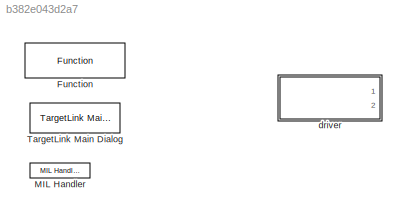
MODEL slx_b382e043d2a7
KIND model
CONFIG AbsTol = auto
CONFIG EnableMultiTasking = off
CONFIG FixedStep = auto
CONFIG InitFcn = if exist('tlds_init','file'), tlds_init(gcs); end
CONFIG MaxStep = auto
CONFIG MinStep = auto
CONFIG PostLoadFcn = if exist('tl_postloadfcn','file'), tl_postloadfcn(gcs,403); end
CONFIG PreLoadFcn = if exist('tl_preloadfcn','file'), tl_preloadfcn(gcs,403); end
CONFIG RelTol = 1e-3
CONFIG SampleTimeConstraint = Unconstrained
CONFIG Solver = FixedStepAuto
CONFIG SolverName = FixedStepAuto
CONFIG StartFcn = if exist('tlds_start','file'), tlds_start(gcs); end
CONFIG StartTime = 0.0
CONFIG StopFcn = if exist('tlds_stop','file'), tlds_stop(gcs); end
CONFIG StopTime = 10.0
BLOCK [Reference] Function  REF=tllib/Function
  Ports = []
  SourceBlock = tllib/Function
  SourceProductName = dSPACE TargetLink common blockset
  SourceType = TL_Function
BLOCK [Reference] MIL Handler  REF=tllib/MIL Handler
  Ports = []
  SourceBlock = tllib/MIL Handler
  SourceProductName = dSPACE TargetLink common blockset
  SourceType = TL_MilHandler
BLOCK [Reference] TargetLink Main Dialog  REF=tllib/TargetLink Main Dialog
  Ports = []
  SourceBlock = tllib/TargetLink Main Dialog
  SourceProductName = dSPACE TargetLink common blockset
  SourceType = TL_MainDialog
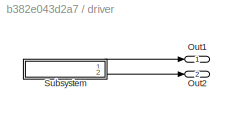
BLOCK [SubSystem] driver
  CopyFcn = if exist('tl_copyfcn','file'), tl_copyfcn(gcbh); end
  NameChangeFcn = if exist('tl_framenamechangefcn','file'), tl_framenamechangefcn(gcbh); end
  OpenFcn = if exist('open_tlsubsystem','file')\n   open_tlsubsystem(gcbh);\nelse\n   tlsubsystem = ...\n      find_system(gcb, ...\n      'LookUnderMasks','on', ...\n      'FollowLinks','on', ...\n      'Tag','MIL Subsystem');\n   open_system(tlsubsystem);\nend
  Ports = [0, 2]
  RequestExecContextInheritance = off
  Tag = TargetLink Simulation Frame
  Variant = off
BLOCK [Outport] driver/Out1
  IconDisplay = Port number
BLOCK [Outport] driver/Out2
  IconDisplay = Port number
  Port = 2
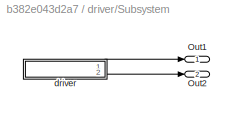
BLOCK [SubSystem] driver/Subsystem
  OpenFcn = warndlg(get_param(gcb,'MaskHelp'),'Serious Warning');
  Ports = [0, 2]
  RequestExecContextInheritance = off
  UserDataPersistent = on
  Variant = off
BLOCK [Outport] driver/Subsystem/Out1
  IconDisplay = Port number
BLOCK [Outport] driver/Subsystem/Out2
  IconDisplay = Port number
  Port = 2
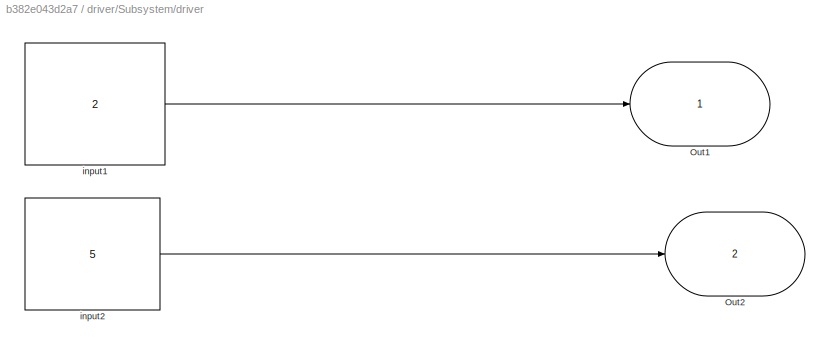
BLOCK [SubSystem] driver/Subsystem/driver
  CopyFcn = if exist('tl_copyfcn','file'), tl_copyfcn(gcbh); end
  Description = a
  DestroyFcn = if exist('update_tl_main_dlg','file'), update_tl_main_dlg('TL_subs_display'); end
  NameChangeFcn = if exist('tl_namechangefcn','file'), tl_namechangefcn(gcbh); end
  Ports = [0, 2]
  RequestExecContextInheritance = off
  Tag = MIL Subsystem
  Variant = off
BLOCK [Outport] driver/Subsystem/driver/Out1
  CopyFcn = if ~strcmp(get_param(gcbh, 'LinkStatus'), 'implicit') set_param(gcbh,'ReferenceBlock',''); end;\nif exist('tl_reset_reviewflag','file')==2\n    tl_reset_reviewflag(gcbh);\nend\nif exist('tl_check_ports','file')\n    tl_check_ports(gcbh);\nend
  DeleteFcn = if exist('delete_tlblock','file')==2,delete_tlblock(gcbh);end
  IconDisplay = Port number
  NameChangeFcn = if exist('rename_tlblock','file')==2,rename_tlblock(gcbh);end\nif exist('tl_check_ports','file'), tl_check_ports(gcbh); end
  OpenFcn = if exist('tl_open_blockdlg','file')==2,tl_open_blockdlg(gcbh);else,open_system(gcbh,'parameter');end
  PortDimensions = 1
BLOCK [Outport] driver/Subsystem/driver/Out2
  CopyFcn = if ~strcmp(get_param(gcbh, 'LinkStatus'), 'implicit') set_param(gcbh,'ReferenceBlock',''); end;\nif exist('tl_reset_reviewflag','file')==2\n    tl_reset_reviewflag(gcbh);\nend\nif exist('tl_check_ports','file')\n    tl_check_ports(gcbh);\nend
  DeleteFcn = if exist('delete_tlblock','file')==2,delete_tlblock(gcbh);end
  IconDisplay = Port number
  NameChangeFcn = if exist('rename_tlblock','file')==2,rename_tlblock(gcbh);end\nif exist('tl_check_ports','file'), tl_check_ports(gcbh); end
  OpenFcn = if exist('tl_open_blockdlg','file')==2,tl_open_blockdlg(gcbh);else,open_system(gcbh,'parameter');end
  Port = 2
  PortDimensions = 1
BLOCK [Constant] driver/Subsystem/driver/input1
  CopyFcn = if exist('tl_reset_reviewflag') == 2, tl_reset_reviewflag(gcbh); end; if ~strcmp(get_param(gcbh, 'LinkStatus'), 'implicit') set_param(gcbh,'ReferenceBlock',''); end;
  DeleteFcn = if exist('delete_tlblock','file')==2,delete_tlblock(gcbh);end
  NameChangeFcn = if exist('rename_tlblock','file')==2,rename_tlblock(gcbh);end
  OpenFcn = if exist('tl_open_blockdlg','file')==2,tl_open_blockdlg(gcbh);else,open_system(gcbh,'parameter');end
  Value = 2
BLOCK [Constant] driver/Subsystem/driver/input2
  CopyFcn = if exist('tl_reset_reviewflag') == 2, tl_reset_reviewflag(gcbh); end; if ~strcmp(get_param(gcbh, 'LinkStatus'), 'implicit') set_param(gcbh,'ReferenceBlock',''); end;
  DeleteFcn = if exist('delete_tlblock','file')==2,delete_tlblock(gcbh);end
  NameChangeFcn = if exist('rename_tlblock','file')==2,rename_tlblock(gcbh);end
  OpenFcn = if exist('tl_open_blockdlg','file')==2,tl_open_blockdlg(gcbh);else,open_system(gcbh,'parameter');end
  Value = 5
LINE driver/Subsystem/driver/input1:1 -> driver/Subsystem/driver/Out1:1
LINE driver/Subsystem/driver/input2:1 -> driver/Subsystem/driver/Out2:1
LINE driver/Subsystem/driver:1 -> driver/Subsystem/Out1:1
LINE driver/Subsystem/driver:2 -> driver/Subsystem/Out2:1
LINE driver/Subsystem:1 -> driver/Out1:1
LINE driver/Subsystem:2 -> driver/Out2:1
